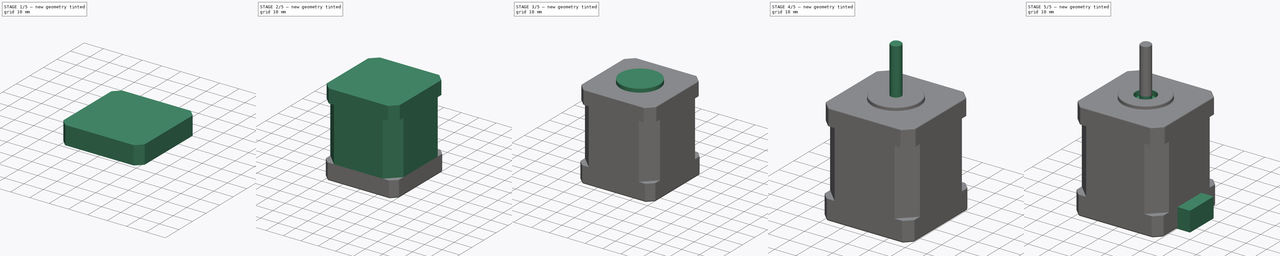
[diagram: build sequence overview — one tinted view per stage of 5, left to right]
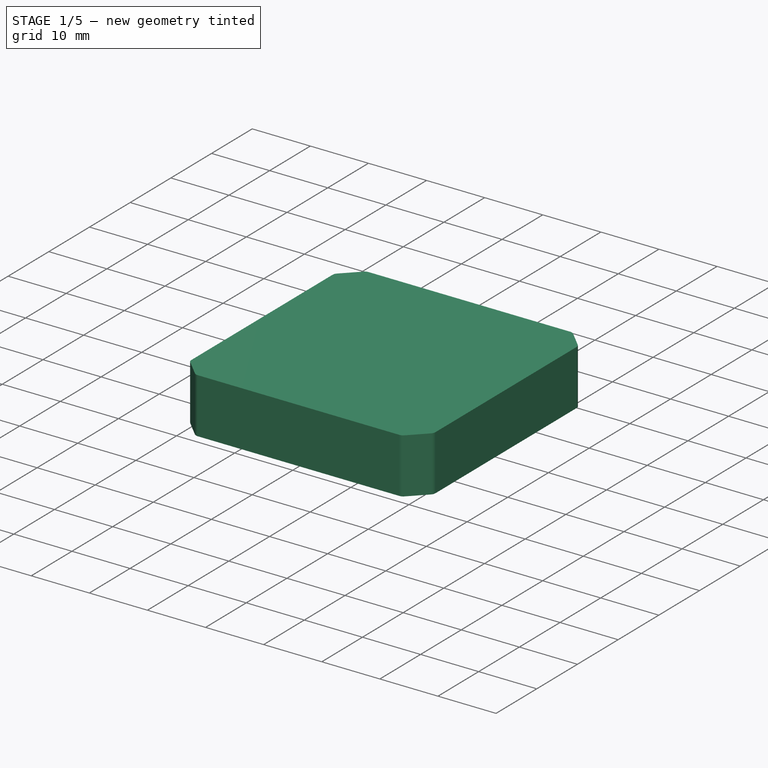
[diagram: stage 1 of 5 — iso view after this stage's code; geometry added in this stage tinted green]
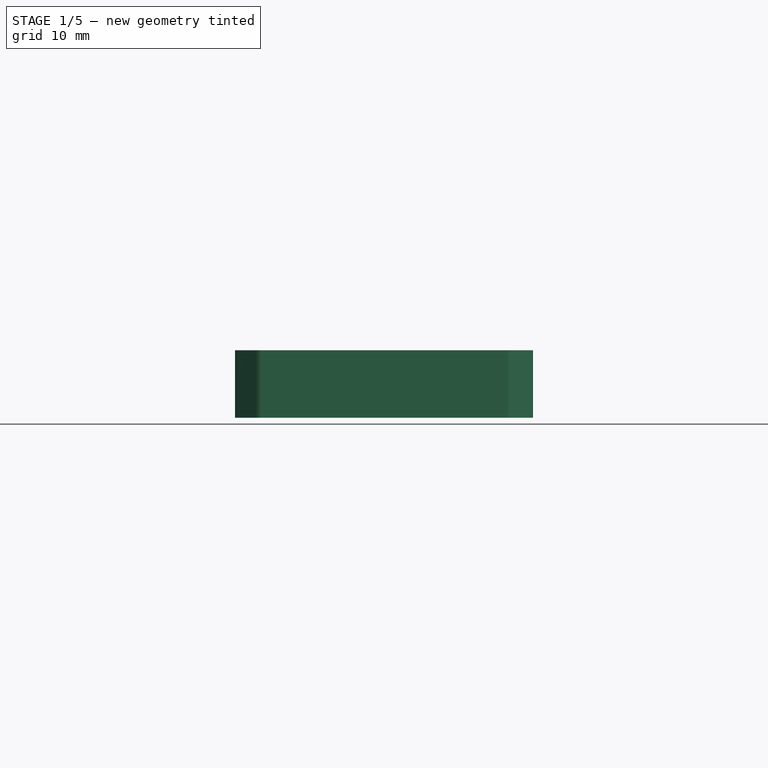
[diagram: stage 1 of 5 — front view after this stage's code; geometry added in this stage tinted green]
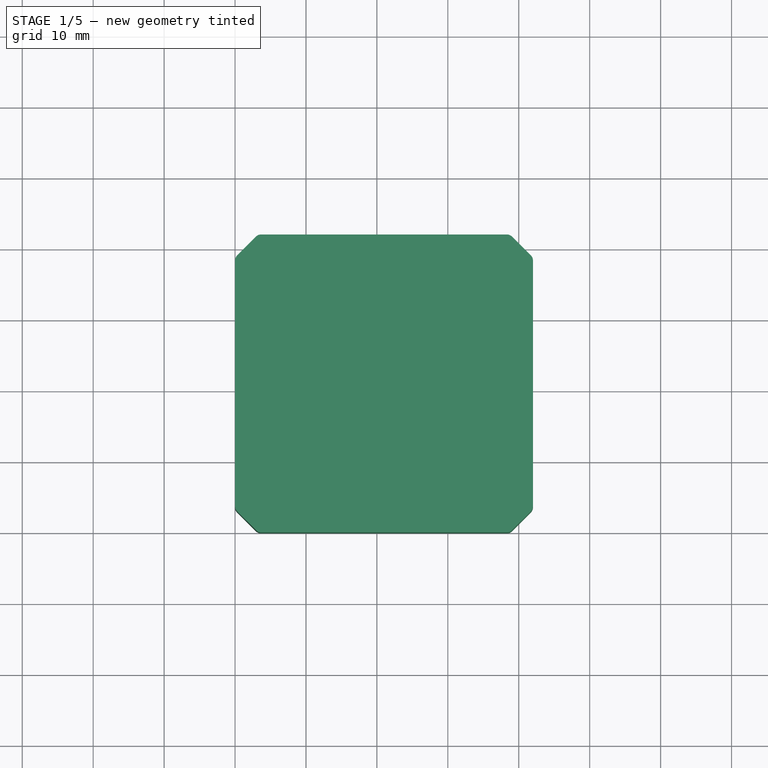
[diagram: stage 1 of 5 — top view after this stage's code; geometry added in this stage tinted green]
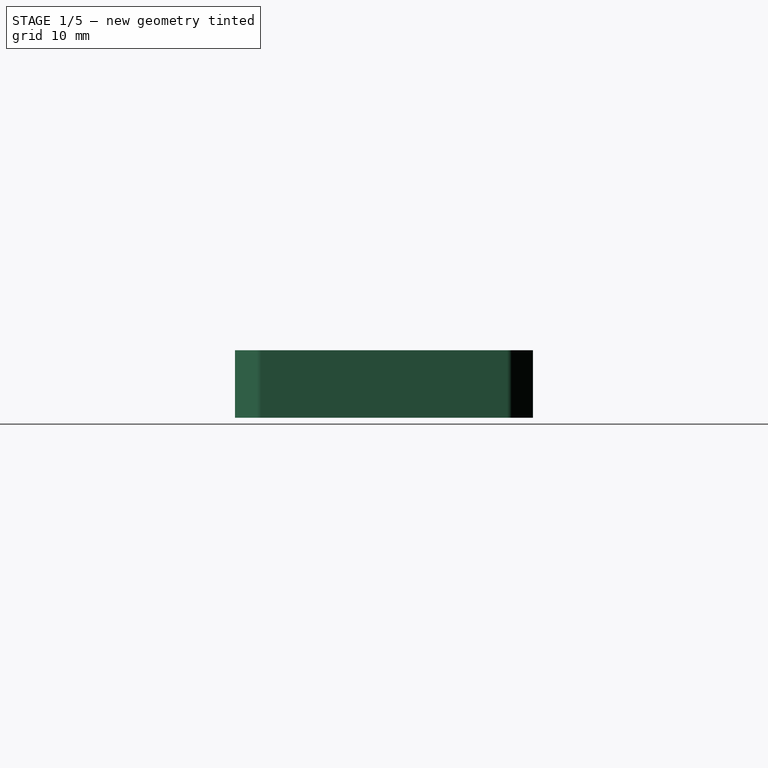
[diagram: stage 1 of 5 — right view after this stage's code; geometry added in this stage tinted green]
FCSTD DOCUMENT  (FreeCAD 0.17R8489 (Git))
Label: NEMA17
License: CreativeCommons Attribution-ShareAlike
LicenseURL: http://creativecommons.org/licenses/by-sa/4.0/
objects: Sketcher::SketchObject×8, PartDesign::Pad×6, PartDesign::Fillet×6, PartDesign::Chamfer×3, PartDesign::Pocket×2, PartDesign::Body×1, Part::Feature×1
note: 35 computed .brp shape members not serialized (recipe doc carries the construction recipe); baked Part::Feature solids carry a one-line shape summary decoded from their .brp

FEATURE [Sketcher::SketchObject] Sketch
  MapMode = 5
  Support = -> [XY_Plane]
  sketch-geometry (4):
    g0: LineSegment StartX=0 StartY=0 StartZ=0 EndX=42 EndY=0 EndZ=0
    g1: LineSegment StartX=42 StartY=0 StartZ=0 EndX=42 EndY=42 EndZ=0
    g2: LineSegment StartX=42 StartY=42 StartZ=0 EndX=0 EndY=42 EndZ=0
    g3: LineSegment StartX=0 StartY=42 StartZ=0 EndX=0 EndY=0 EndZ=0
  constraints (11):
    c: Coincident(g0,g1)
    c: Coincident(g1,g2)
    c: Coincident(g2,g3)
    c: Coincident(g3,g0)
    c: Horizontal(g0)
    c: Horizontal(g2)
    c: Vertical(g1)
    c: Vertical(g3)
    c: Coincident(g0,g-1)
    c: Equal(g0,g3)
    c: DistanceX(g0,g0) = 42
FEATURE [PartDesign::Pad] Pad
  Length = 9.5
  Length2 = 100
  Profile = -> Sketch
  Type = 0
FEATURE [PartDesign::Chamfer] Chamfer
  Base = -> Pad [Edge1,Edge8,Edge5,Edge2]
  BaseFeature = -> Pad
  Size = 3.25
FEATURE [PartDesign::Fillet] Fillet
  Base = -> Chamfer [Edge23,Edge21,Edge22,Edge14,Edge3,Edge2,Edge12,Edge24]
  BaseFeature = -> Chamfer
  Radius = 1
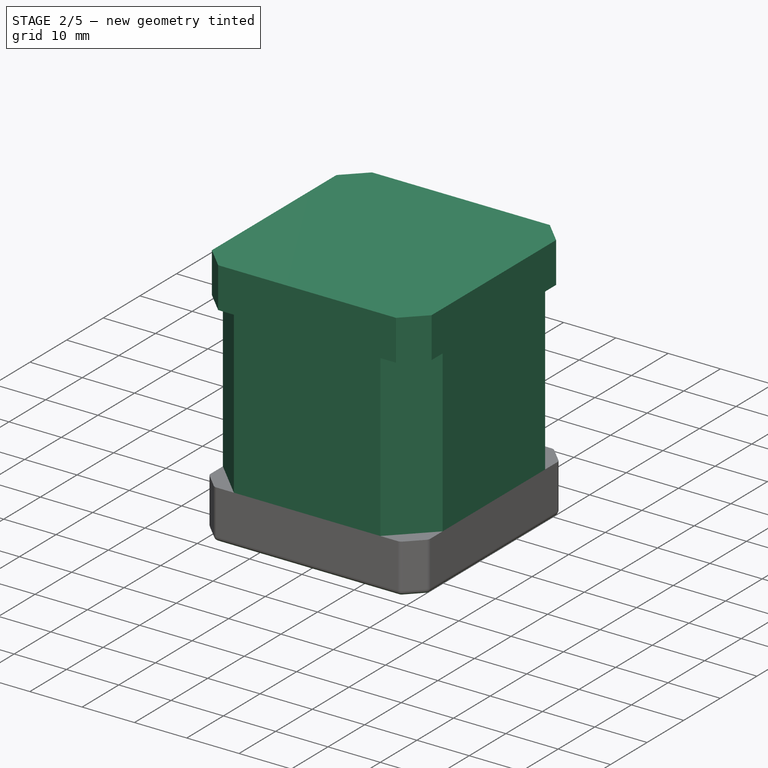
[diagram: stage 2 of 5 — iso view after this stage's code; geometry added in this stage tinted green]
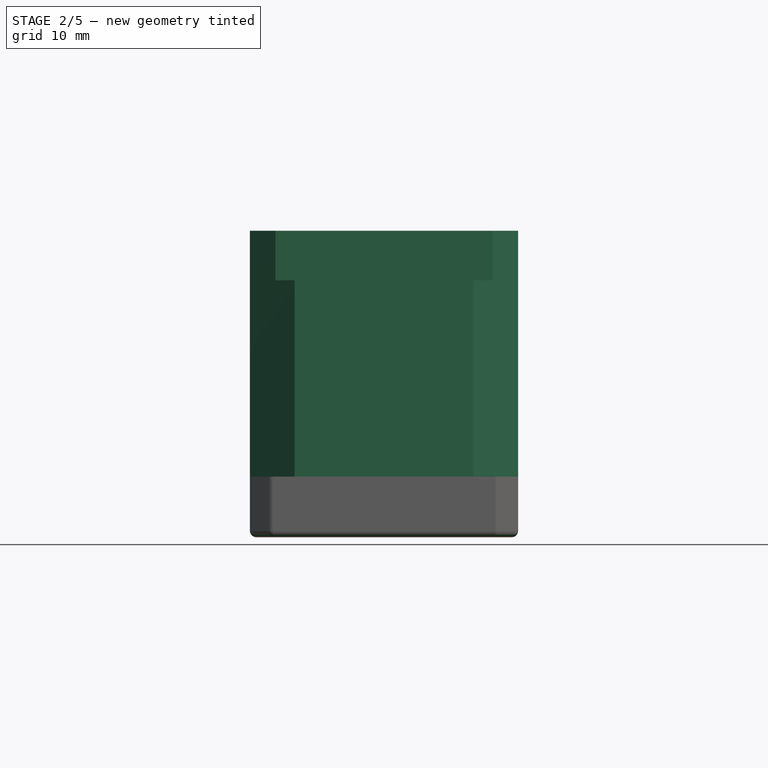
[diagram: stage 2 of 5 — front view after this stage's code; geometry added in this stage tinted green]
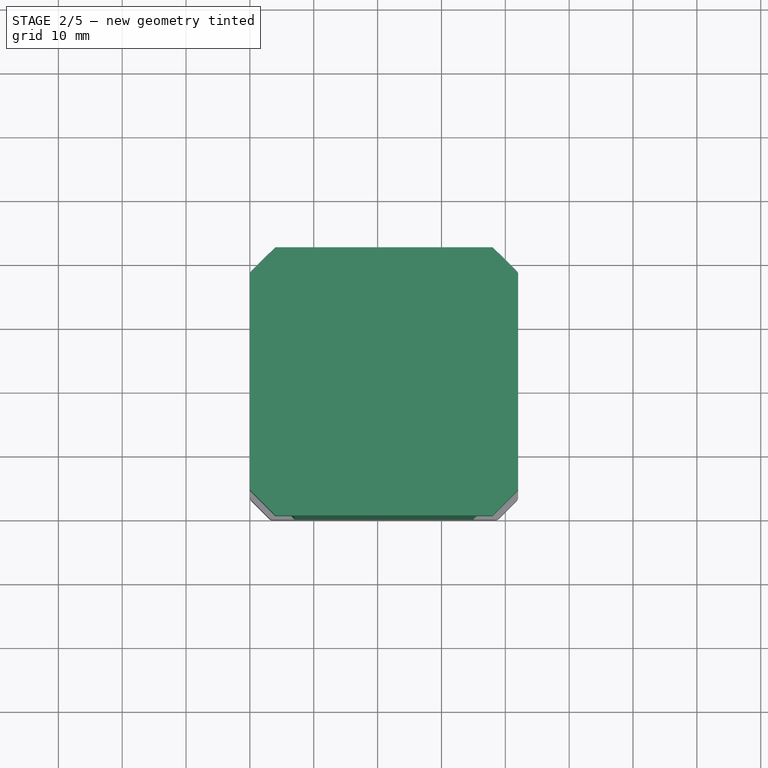
[diagram: stage 2 of 5 — top view after this stage's code; geometry added in this stage tinted green]
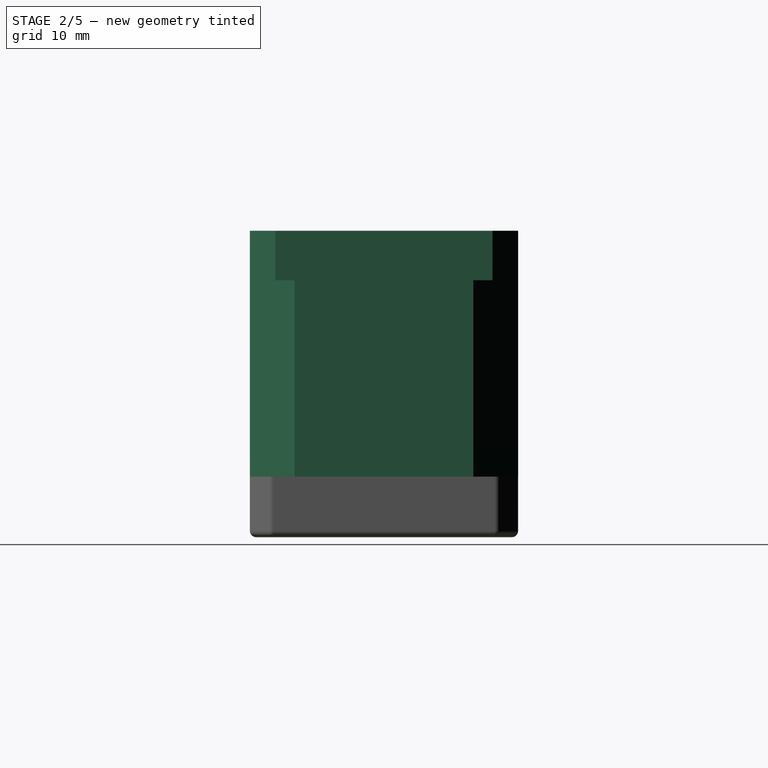
[diagram: stage 2 of 5 — right view after this stage's code; geometry added in this stage tinted green]
FEATURE [PartDesign::Fillet] Fillet001
  Base = -> Fillet [Face2]
  BaseFeature = -> Fillet
  Radius = 1
FEATURE [Sketcher::SketchObject] Sketch001
  MapMode = 5
  Placement = pos=(0,0,9.5) rot=(0,0,1;0rad)
  Support = -> [Fillet001]
  sketch-geometry (8):
    g0: LineSegment StartX=7 StartY=0 StartZ=0 EndX=35 EndY=0 EndZ=0
    g1: LineSegment StartX=42 StartY=7 StartZ=0 EndX=42 EndY=35 EndZ=0
    g2: LineSegment StartX=35 StartY=42 StartZ=0 EndX=7 EndY=42 EndZ=0
    g3: LineSegment StartX=0 StartY=35 StartZ=0 EndX=0 EndY=7 EndZ=0
    g4: LineSegment StartX=0 StartY=35 StartZ=0 EndX=7 EndY=42 EndZ=0
    g5: LineSegment StartX=35 StartY=42 StartZ=0 EndX=42 EndY=35 EndZ=0
    g6: LineSegment StartX=42 StartY=7 StartZ=0 EndX=35 EndY=0 EndZ=0
    g7: LineSegment StartX=7 StartY=0 StartZ=0 EndX=0 EndY=7 EndZ=0
  constraints (24):
    c: Horizontal(g0)
    c: Horizontal(g2)
    c: Vertical(g1)
    c: Vertical(g3)
    c: Equal(g0,g3)
    c: Equal(g7,g4)
    c: Equal(g4,g5)
    c: Equal(g5,g6)
    c: Parallel(g5,g7)
    c: Parallel(g4,g6)
    c: Coincident(g3,g4)
    c: Coincident(g2,g4)
    c: Coincident(g2,g5)
    c: Coincident(g1,g5)
    c: Coincident(g1,g6)
    c: Coincident(g6,g0)
    c: Coincident(g0,g7)
    c: Coincident(g3,g7)
    c: Angle(g0,g7) = 2.35619
    c: Angle(g3,g4) = 2.35619
    c: PointOnObject(g3,g-2)
    c: PointOnObject(g0,g-1)
    c: DistanceY(g0,g2) = 42
    c: DistanceY(g1,g2) = 7
FEATURE [PartDesign::Pad] Pad001
  BaseFeature = -> Fillet001
  Length = 30.75
  Length2 = 100
  Profile = -> Sketch001
  Type = 0
FEATURE [Sketcher::SketchObject] Sketch002
  MapMode = 5
  Placement = pos=(0,0,40.25) rot=(0,0,1;0rad)
  Support = -> [Pad001]
  sketch-geometry (4):
    g0: LineSegment StartX=0 StartY=0 StartZ=0 EndX=42 EndY=0 EndZ=0
    g1: LineSegment StartX=42 StartY=0 StartZ=0 EndX=42 EndY=42 EndZ=0
    g2: LineSegment StartX=42 StartY=42 StartZ=0 EndX=0 EndY=42 EndZ=0
    g3: LineSegment StartX=0 StartY=42 StartZ=0 EndX=0 EndY=0 EndZ=0
  constraints (11):
    c: Coincident(g0,g1)
    c: Coincident(g1,g2)
    c: Coincident(g2,g3)
    c: Coincident(g3,g0)
    c: Horizontal(g0)
    c: Horizontal(g2)
    c: Vertical(g1)
    c: Vertical(g3)
    c: Coincident(g0,g-1)
    c: Equal(g3,g0)
    c: DistanceY(g3,g3) = 42
FEATURE [PartDesign::Pad] Pad002
  BaseFeature = -> Pad001
  Length = 7.75
  Length2 = 100
  Profile = -> Sketch002
  Type = 0
FEATURE [PartDesign::Chamfer] Chamfer001
  Base = -> Pad002 [Edge89,Edge51,Edge96,Edge54]
  BaseFeature = -> Pad002
  Size = 4
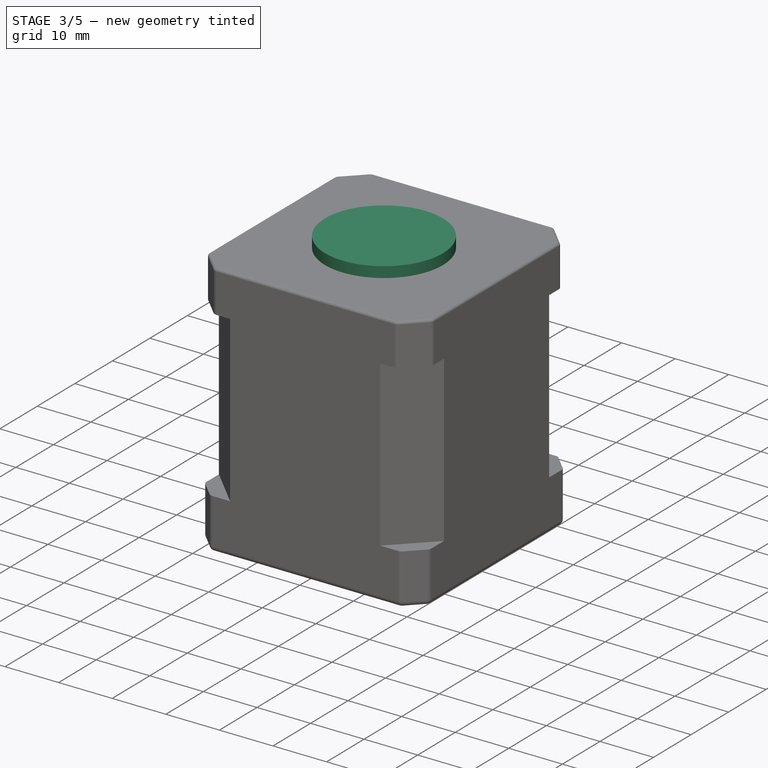
[diagram: stage 3 of 5 — iso view after this stage's code; geometry added in this stage tinted green]
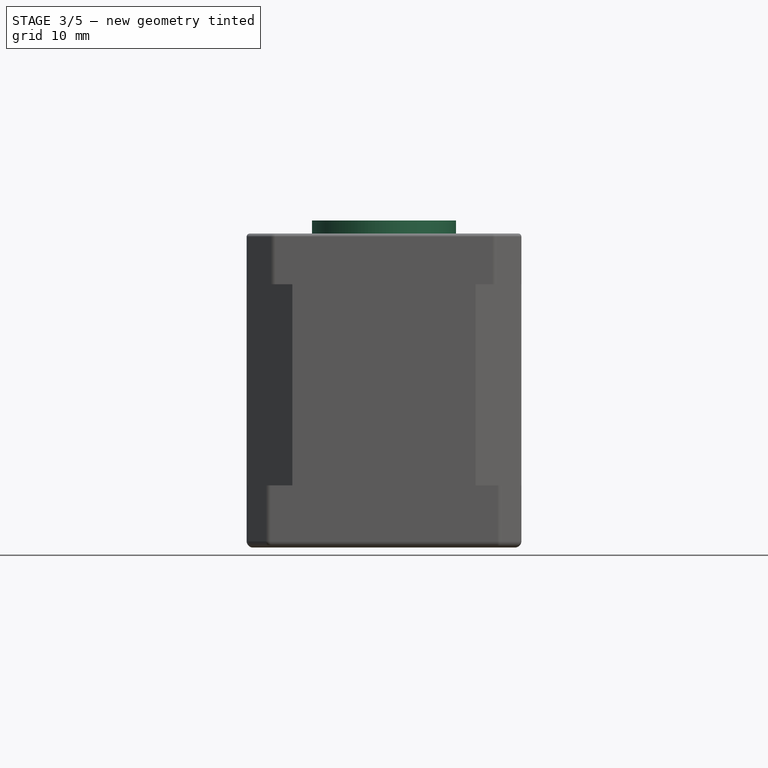
[diagram: stage 3 of 5 — front view after this stage's code; geometry added in this stage tinted green]
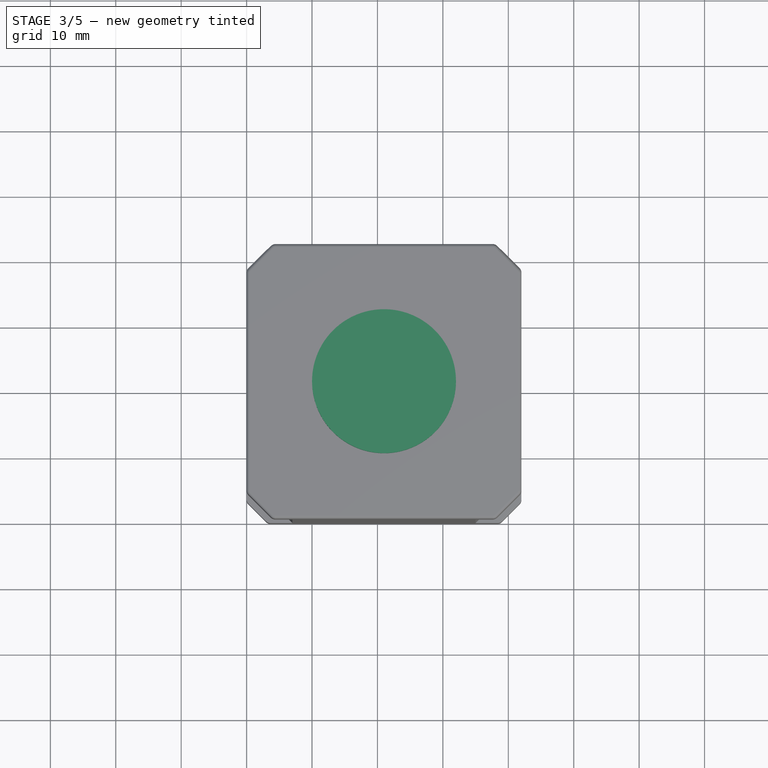
[diagram: stage 3 of 5 — top view after this stage's code; geometry added in this stage tinted green]
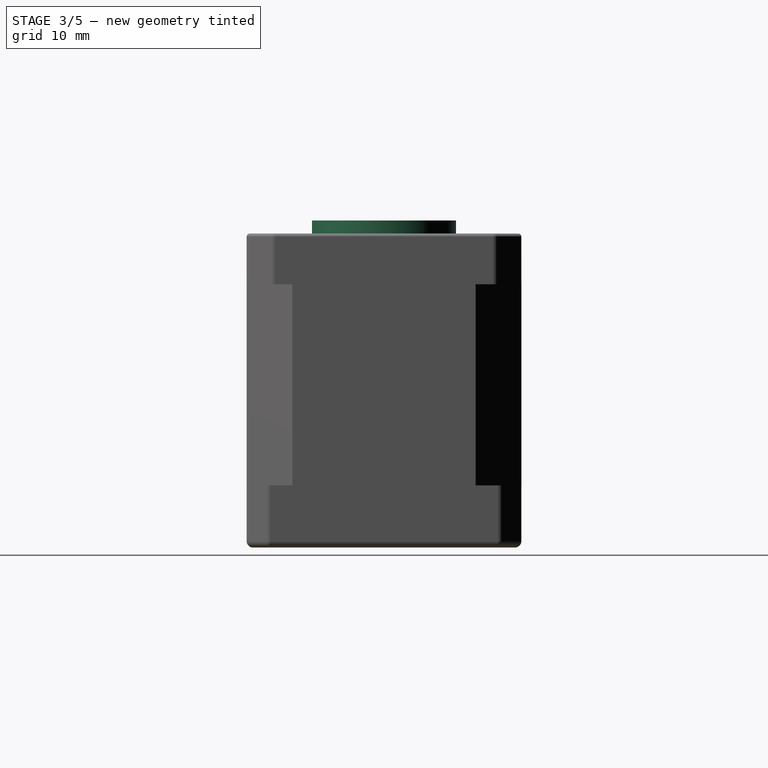
[diagram: stage 3 of 5 — right view after this stage's code; geometry added in this stage tinted green]
FEATURE [PartDesign::Fillet] Fillet002
  Base = -> Chamfer001 [Edge10,Edge2,Edge28,Edge41,Edge43,Edge39,Edge24,Edge6]
  BaseFeature = -> Chamfer001
  Radius = 1
FEATURE [PartDesign::Fillet] Fillet003
  Base = -> Fillet002 [Face5]
  BaseFeature = -> Fillet002
  Radius = 0.5
FEATURE [Sketcher::SketchObject] Sketch003
  MapMode = 5
  Placement = pos=(0,0,48) rot=(0,0,1;0rad)
  Support = -> [Fillet003]
  sketch-geometry (1):
    g0: Circle CenterX=21 CenterY=21 CenterZ=0 NormalX=0 NormalY=0 NormalZ=1 Radius=11
  constraints (3):
    c: DistanceX(g0) = 21
    c: DistanceY(g0) = 21
    c: Radius(g0) = 11
FEATURE [PartDesign::Pad] Pad003
  BaseFeature = -> Fillet003
  Length = 2
  Length2 = 100
  Profile = -> Sketch003
  Type = 0
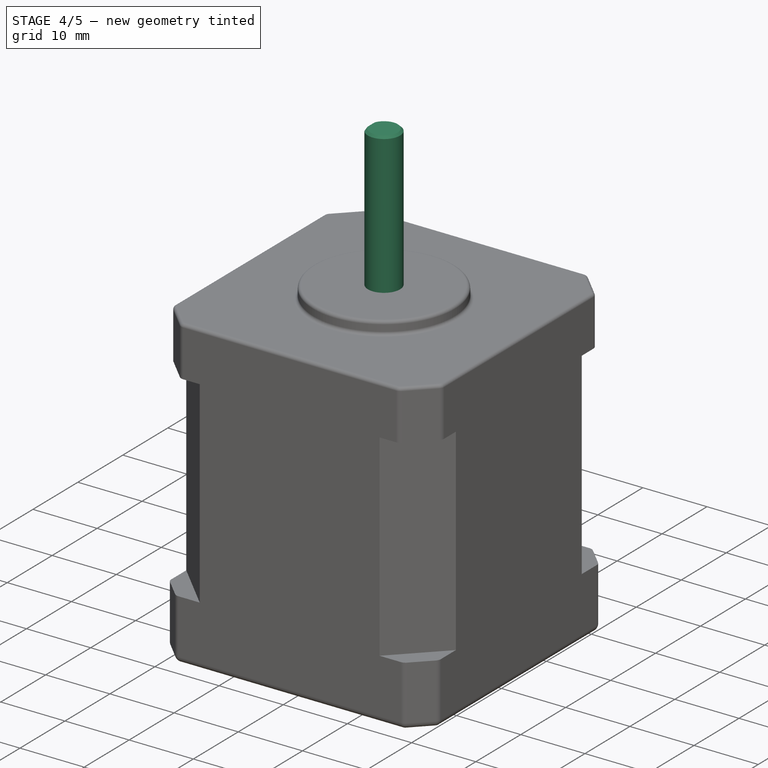
[diagram: stage 4 of 5 — iso view after this stage's code; geometry added in this stage tinted green]
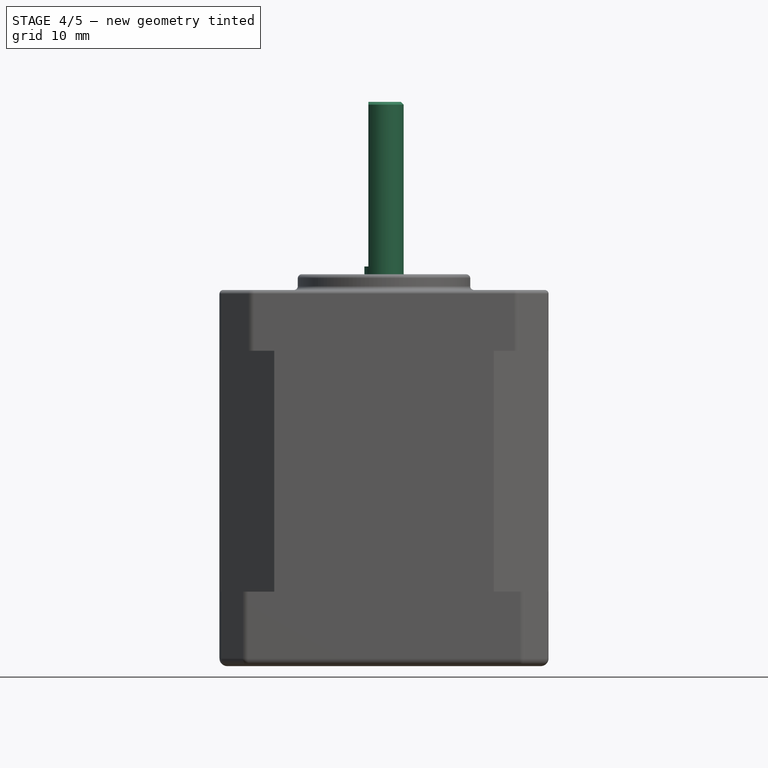
[diagram: stage 4 of 5 — front view after this stage's code; geometry added in this stage tinted green]
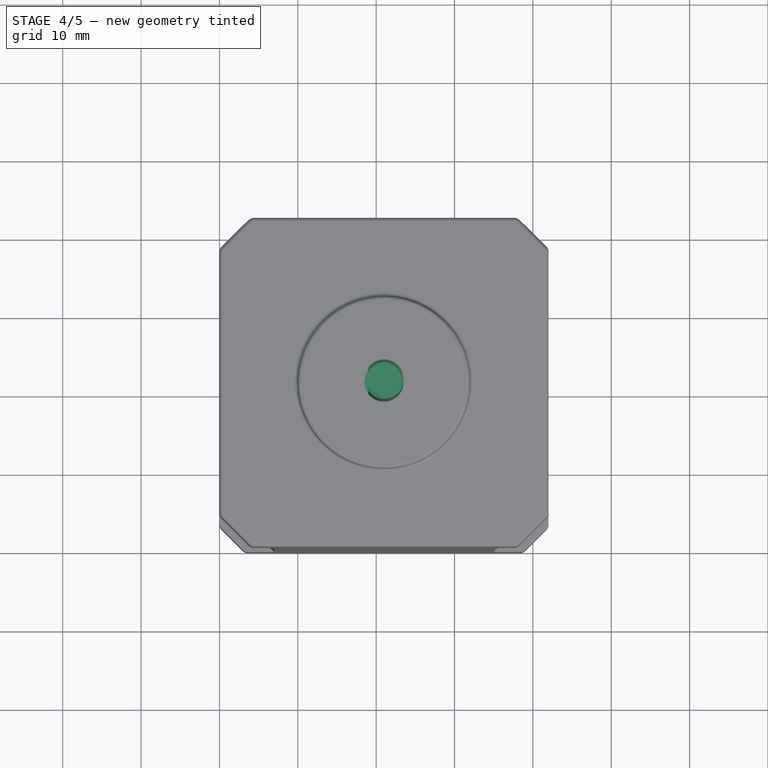
[diagram: stage 4 of 5 — top view after this stage's code; geometry added in this stage tinted green]
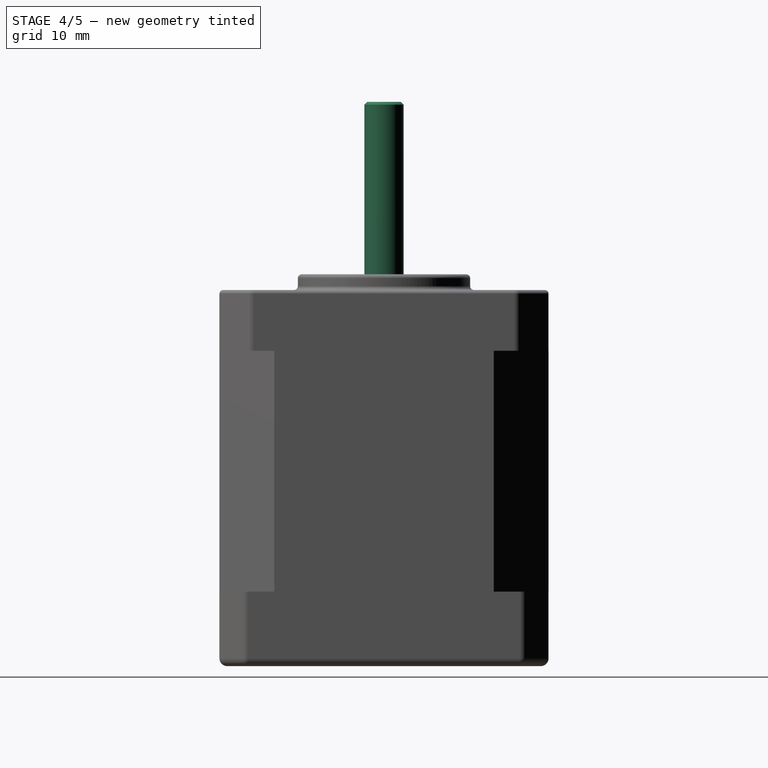
[diagram: stage 4 of 5 — right view after this stage's code; geometry added in this stage tinted green]
FEATURE [Sketcher::SketchObject] Sketch004
  MapMode = 5
  Placement = pos=(0,0,50) rot=(0,0,1;0rad)
  Support = -> [Pad003]
  sketch-geometry (1):
    g0: Circle CenterX=21 CenterY=21 CenterZ=0 NormalX=0 NormalY=0 NormalZ=1 Radius=2.5
  constraints (3):
    c: DistanceX(g0) = 21
    c: DistanceY(g0) = 21
    c: Radius(g0) = 2.5
FEATURE [PartDesign::Pad] Pad004
  BaseFeature = -> Pad003
  Length = 22
  Length2 = 100
  Profile = -> Sketch004
  Type = 0
FEATURE [PartDesign::Fillet] Fillet004
  Base = -> Pad004 [Edge45,Edge90]
  BaseFeature = -> Pad004
  Radius = 0.5
FEATURE [PartDesign::Chamfer] Chamfer002
  Base = -> Fillet004 [Edge138]
  BaseFeature = -> Fillet004
  Size = 0.35
FEATURE [Sketcher::SketchObject] Sketch005
  ExternalGeometry = -> [Chamfer002]
  MapMode = 5
  Placement = pos=(0,0,72) rot=(0,0,1;0rad)
  Support = -> [Chamfer002]
  sketch-geometry (5):
    g0: LineSegment StartX=18 StartY=18.7474 StartZ=0 EndX=19 EndY=18.7474 EndZ=0
    g1: LineSegment StartX=19 StartY=18.7474 StartZ=0 EndX=19 EndY=23.7474 EndZ=0
    g2: LineSegment StartX=19 StartY=23.7474 StartZ=0 EndX=18 EndY=23.7474 EndZ=0
    g3: LineSegment StartX=18 StartY=23.7474 StartZ=0 EndX=18 EndY=18.7474 EndZ=0
    g4: LineSegment [constr] StartX=19 StartY=21 StartZ=0 EndX=23.5 EndY=21 EndZ=0
  constraints (15):
    c: Coincident(g0,g1)
    c: Coincident(g1,g2)
    c: Coincident(g2,g3)
    c: Coincident(g3,g0)
    c: Horizontal(g0)
    c: Horizontal(g2)
    c: Vertical(g1)
    c: Vertical(g3)
    c: PointOnObject(g4,g1)
    c: PointOnObject(g4,g-3)
    c: Horizontal(g4)
    c: DistanceX(g4,g4) = 4.5
    c: PointOnObject(g-3,g4)
    c: DistanceX(g0,g0) = 1
    c: DistanceY(g3,g3) = 5
FEATURE [PartDesign::Pocket] Pocket
  BaseFeature = -> Chamfer002
  Length = 21
  Profile = -> Sketch005
  Type = 0
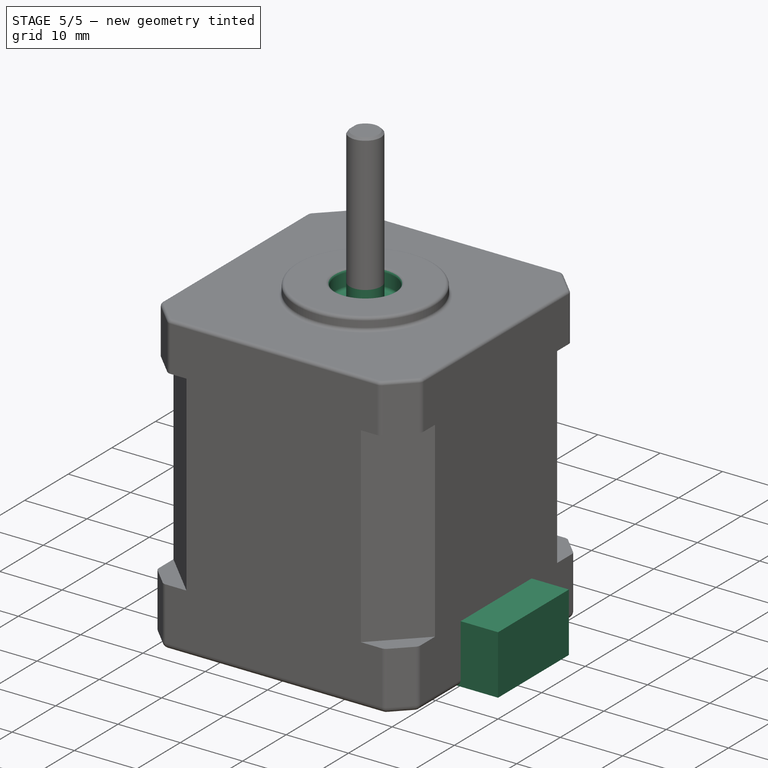
[diagram: stage 5 of 5 — iso view after this stage's code; geometry added in this stage tinted green]
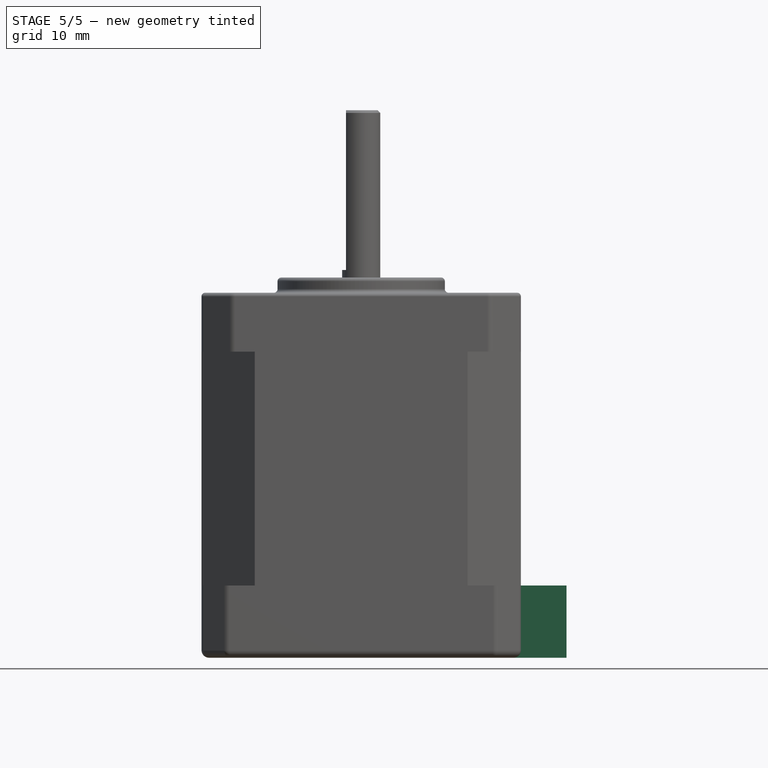
[diagram: stage 5 of 5 — front view after this stage's code; geometry added in this stage tinted green]
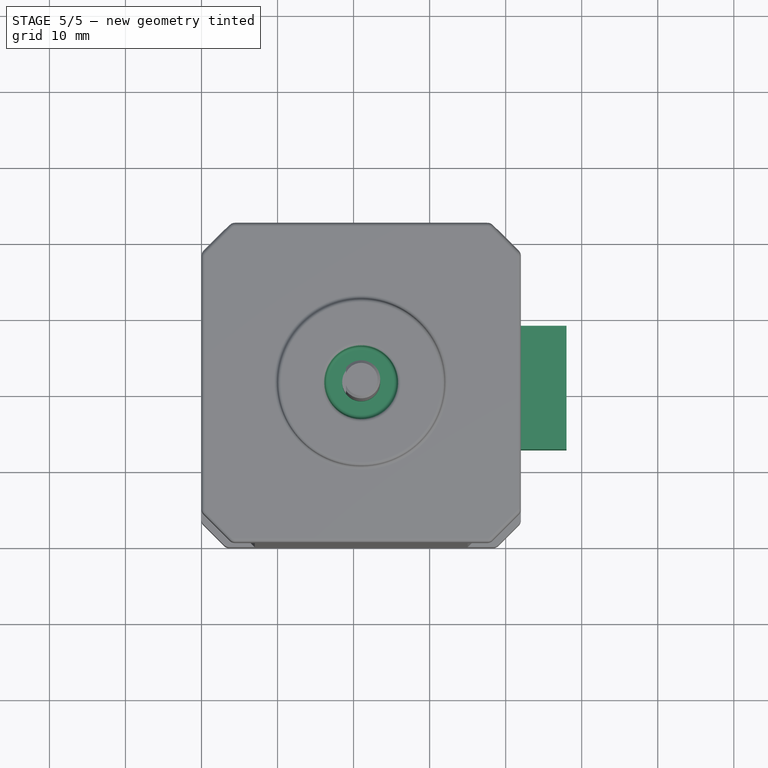
[diagram: stage 5 of 5 — top view after this stage's code; geometry added in this stage tinted green]
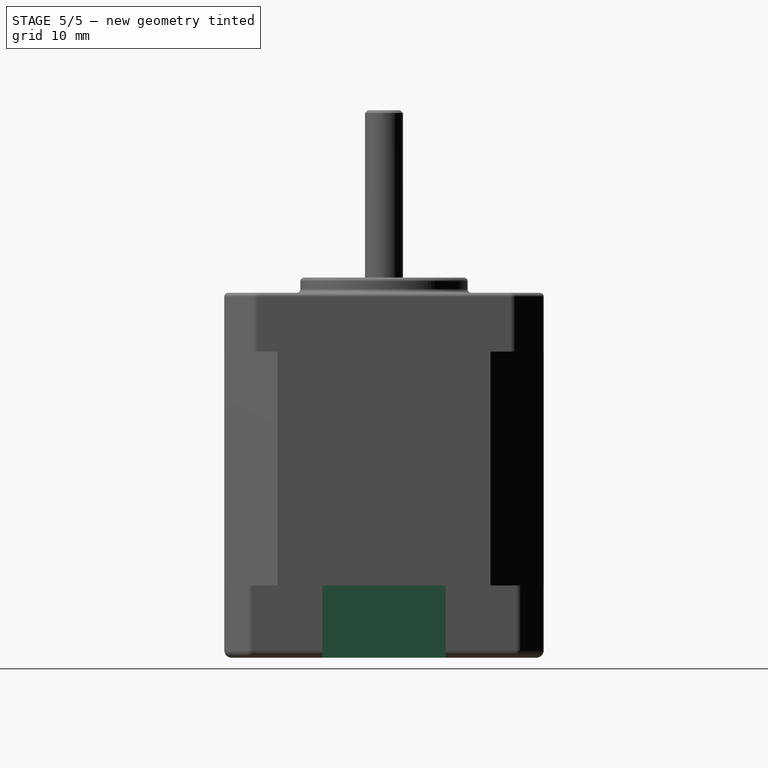
[diagram: stage 5 of 5 — right view after this stage's code; geometry added in this stage tinted green]
FEATURE [Sketcher::SketchObject] Sketch006
  ExternalGeometry = -> [Pocket]
  MapMode = 5
  Placement = pos=(0,0,50) rot=(0,0,1;0rad)
  Support = -> [Pocket]
  sketch-geometry (2):
    g0: Circle CenterX=21 CenterY=21 CenterZ=0 NormalX=0 NormalY=0 NormalZ=1 Radius=2.5
    g1: Circle CenterX=21 CenterY=21 CenterZ=0 NormalX=0 NormalY=0 NormalZ=1 Radius=4.75
  constraints (4):
    c: Coincident(g0,g1)
    c: Coincident(g0,g-3)
    c: PointOnObject(g-3,g0)
    c: Radius(g1) = 4.75
FEATURE [PartDesign::Pocket] Pocket001
  BaseFeature = -> Pocket
  Length = 3
  Profile = -> Sketch006
  Type = 0
FEATURE [PartDesign::Fillet] Fillet005
  Base = -> Pocket001 [Edge18,Edge17]
  BaseFeature = -> Pocket001
  Radius = 0.5
FEATURE [Sketcher::SketchObject] Sketch007
  ExternalGeometry = -> [Fillet005]
  MapMode = 5
  Placement = pos=(42,0,0) rot=(0.57735,0.57735,0.57735;2.0944rad)
  Support = -> [Fillet005]
  sketch-geometry (4):
    g0: LineSegment StartX=12.875 StartY=0 StartZ=0 EndX=29.125 EndY=0 EndZ=0
    g1: LineSegment StartX=29.125 StartY=0 StartZ=0 EndX=29.125 EndY=9.5 EndZ=0
    g2: LineSegment StartX=29.125 StartY=9.5 StartZ=0 EndX=12.875 EndY=9.5 EndZ=0
    g3: LineSegment StartX=12.875 StartY=9.5 StartZ=0 EndX=12.875 EndY=0 EndZ=0
  constraints (12):
    c: Coincident(g0,g1)
    c: Coincident(g1,g2)
    c: Coincident(g2,g3)
    c: Coincident(g3,g0)
    c: Horizontal(g0)
    c: Horizontal(g2)
    c: Vertical(g1)
    c: Vertical(g3)
    c: DistanceX(g2,g2) = 16.25
    c: PointOnObject(g0,g-1)
    c: PointOnObject(g2,g-3)
    c: DistanceX(g-1,g0) = 12.875
FEATURE [PartDesign::Pad] Pad005
  BaseFeature = -> Fillet005
  Length = 6
  Length2 = 1
  Profile = -> Sketch007
  Type = 4
FEATURE [PartDesign::Body] Body
  Model = -> [Sketch,Pad,Chamfer,Fillet,Fillet001,Sketch001,Pad001,Sketch002,Pad002,Chamfer001,Fillet002,Fillet003,Sketch003,Pad003,Sketch004,Pad004,Fillet004,Chamfer002,Sketch005,Pocket,Sketch006,Pocket001,Fillet005,Sketch007,Pad005]
  Origin = -> BodyOrigin
  Tip = -> Pad005
FEATURE [Part::Feature] Pad005001  label="Pad006"
  shape: bbox 48.08 x 42.16 x 72 mm, 104 faces (baked)
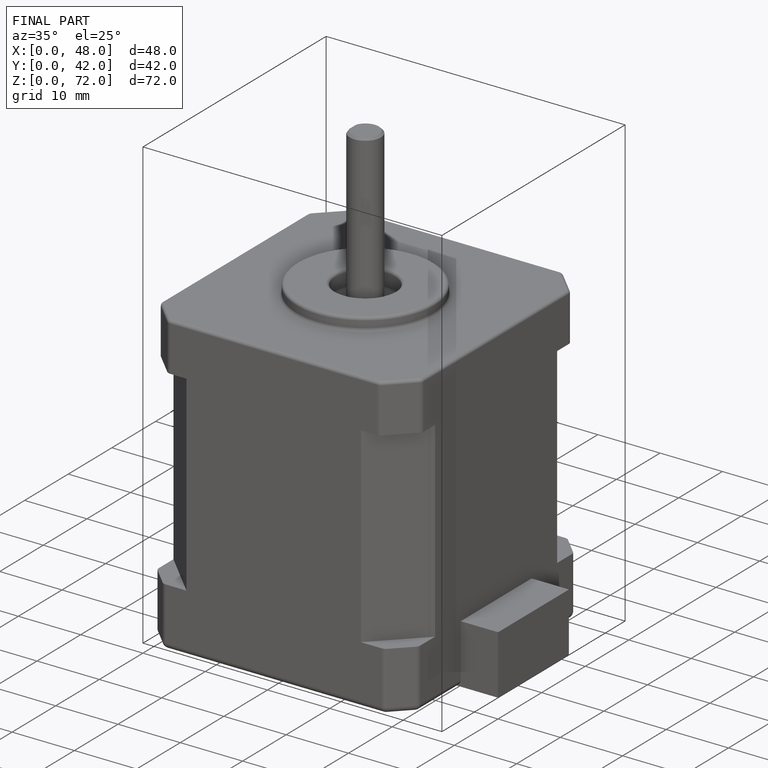
[diagram: finished part — iso view with bounding-box wireframe]
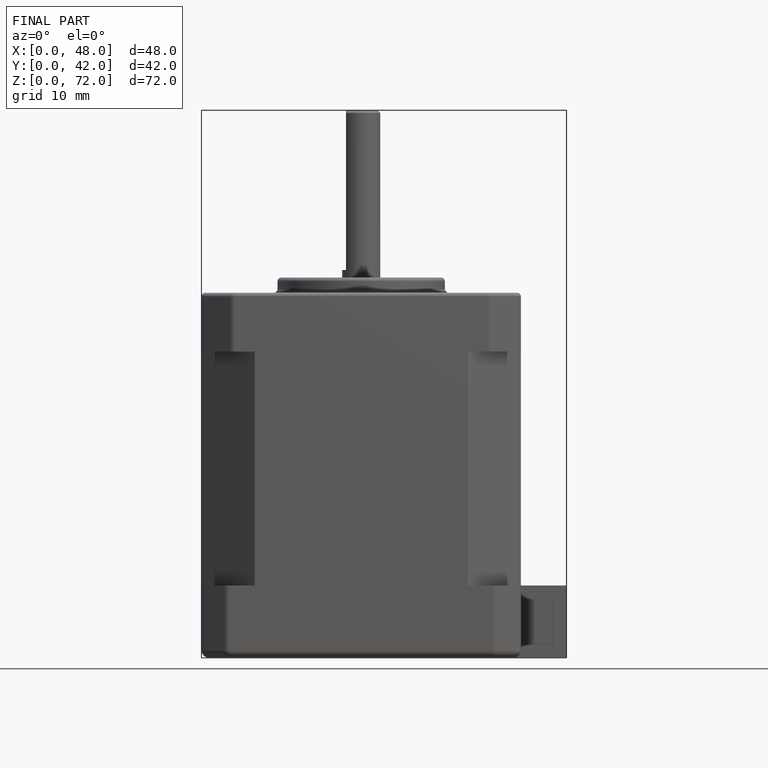
[diagram: finished part — front view with bounding-box wireframe]
